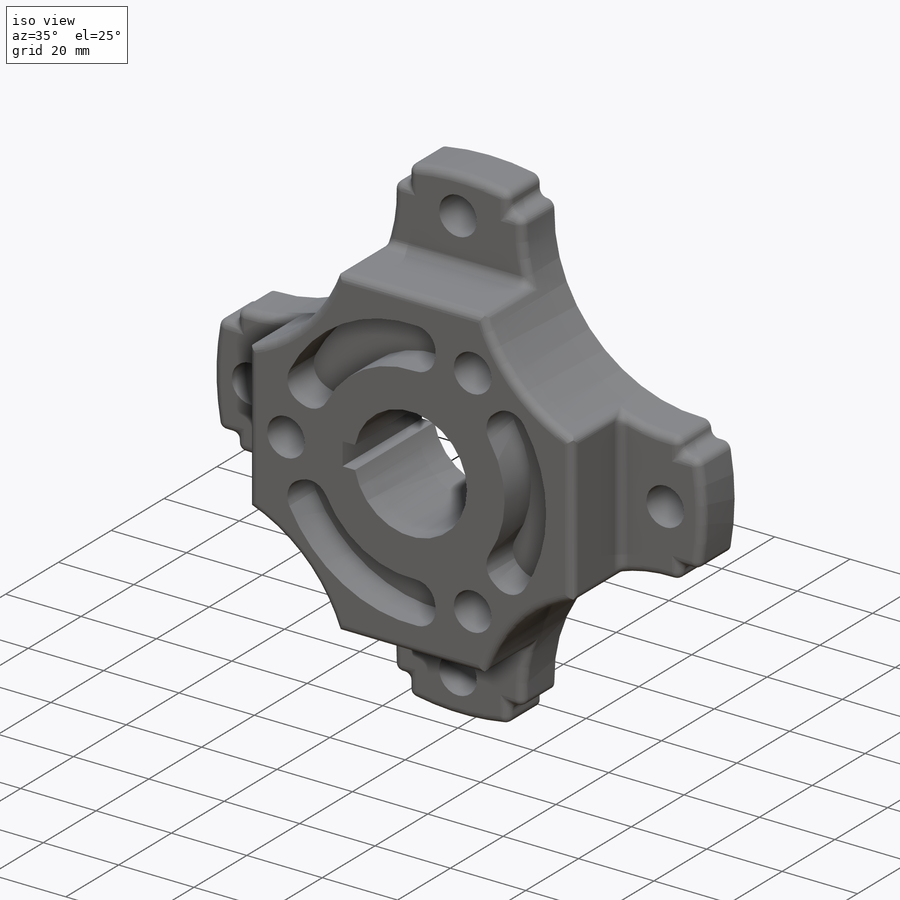
[diagram: iso view]
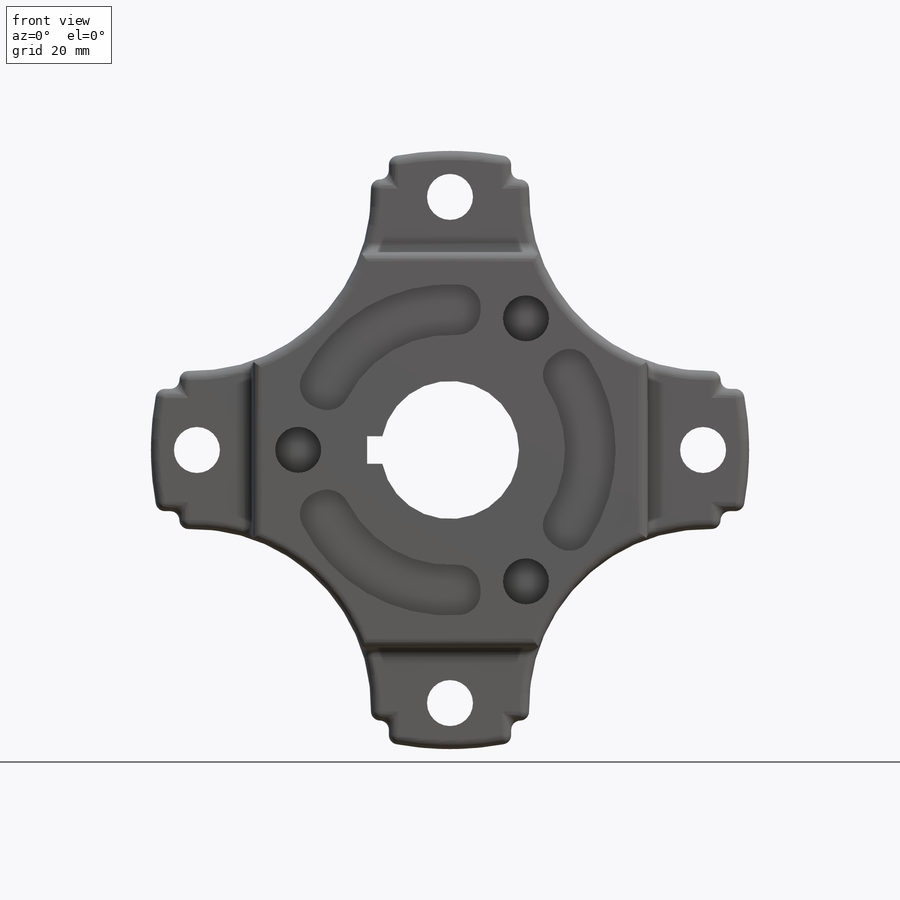
[diagram: front view]
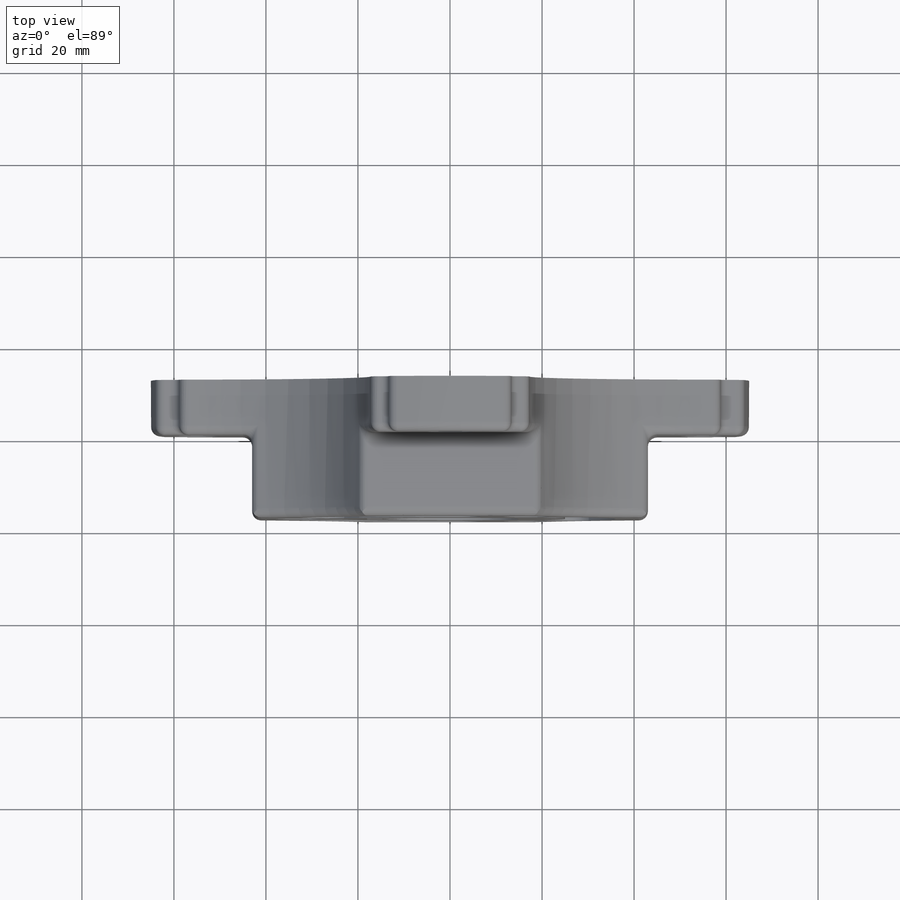
[diagram: top view]
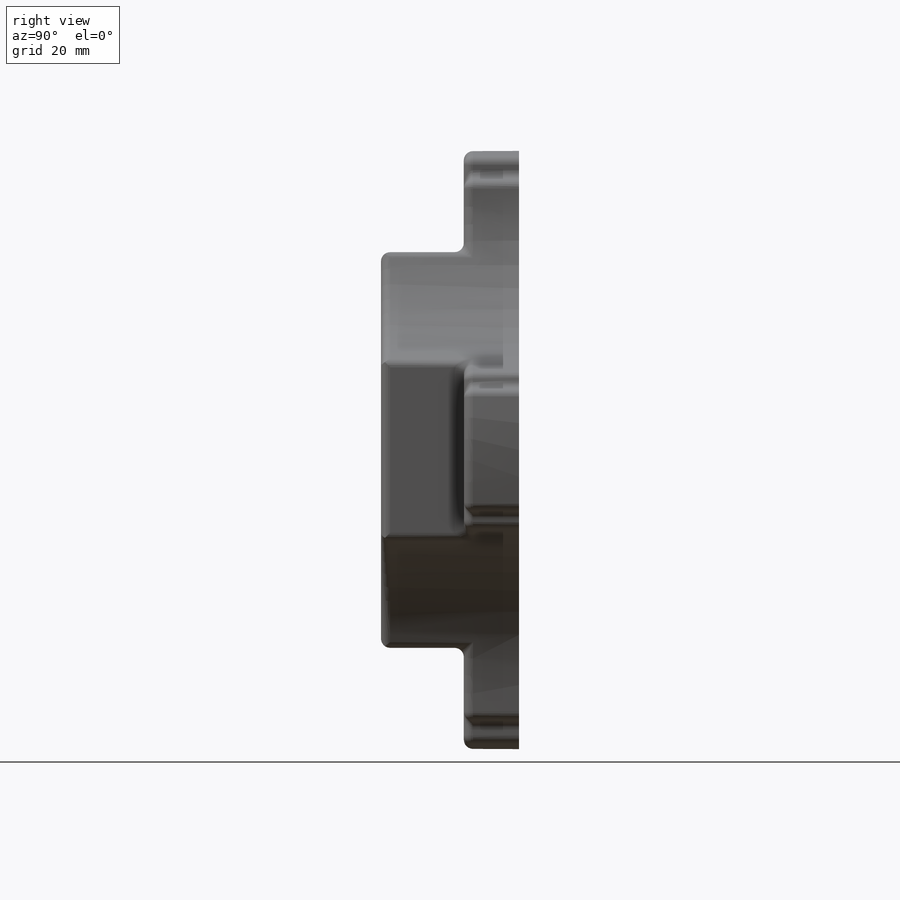
[diagram: right view]
SOLIDWORKS PART (.sldprt)
format: sldprt  version: not decoded by parser v0  size: 882,688 bytes
history: native  units: mm
features: sketch x7, fillet x6, cut_extrude x5, extrude x2, material x1 (+13 scaffold rows collapsed)
feature tree (34):
  scaffold x13  (default folders/planes/origin — collapsed)
  material  "6061-T6 (SS)"
  sketch  "Sketch1"  dims[c1.D1=~52.501247mm c1.D2=~30.601069mm c1.D3=~5.526331mm c1.D6=38.5mm c2.D3=~77.832171mm c2.D2=~38.624996mm c3.D3=65.0mm c3.D1=74.25mm c3.D2=4.0mm c4.D3=33.0mm c4.D4=~5.99721mm c4.D5=4.0mm c5.D3=~78.913634mm c5.D2=78.91mm c5.D4=~4.827805mm c5.D5=~3.999218mm c5.D1=4.0]
  extrude  "Boss-Extrude1"  Depth=12mm
  sketch  "Sketch2"  dims[c1.D1=30.0mm c1.D2=10.0mm c1.D5=~29.300002mm c1.D6=38.5mm c2.D1=~48.240153mm c2.D4=~38.485384mm c3.D1=~38.624996mm c3.D4=33.0mm c3.D5=78.91mm c3.D7=~38.971201mm c4.D1=78.91mm c4.D4=78.91mm c5.D1=86.0mm c5.D4=86.0mm c6.D1=~38.709195mm c6.D3=3.0]
  extrude  "Boss-Extrude3"  Depth=18mm
  sketch  "Sketch6"  dims[c1.D1=35.0mm c1.D2=30.0mm c1.D3=25.0mm c2.D2=20.0mm c2.D3=~32.666667mm c2.D4=~23.333333mm c2.D5=25.0mm c2.D1=4.0]
  cut_extrude  "Cut-Extrude3"  Depth=6mm
  sketch  "Sketch7"  dims[c1.D1=10.0mm c1.D3=~69.095036mm c1.D2=55.0mm c2.D3=4.0]
  cut_extrude  "Cut-Extrude4"  [1 undecoded]
  sketch  "Sketch8"  dims[c1.D1=~19.124449mm c1.D3=15.0mm c2.D1=18.0mm c2.D2=3.0mm c2.D3=3.0mm c3.D2=~3.303062mm]
  cut_extrude  "Cut-Extrude5"  [1 undecoded]
  sketch  "Sketch9"  dims[D1=25.0mm D2=36.0mm D3=5.0mm]
  cut_extrude  "Cut-Extrude6"  Depth=10mm
  fillet  "Fillet4"  Radius=2mm
  fillet  "Fillet5"  Radius=2mm
  fillet  "Fillet6"  Radius=2mm
  fillet  "Fillet7"  Radius=2mm
  fillet  "Fillet8"  Radius=5mm
  fillet  "Fillet9"  Radius=2mm
  sketch  "Sketch10"  dims[D1=3.0]
  cut_extrude  "Cut-Extrude7"  Depth=21.5mm
decode coverage: 18 of 20 modeling features carry decoded parameters
note: ~ marks probable driven/reference dimensions
note: 2 parameter values undecoded
note: suppression state not decoded; provenance and decode notes live in map.json
